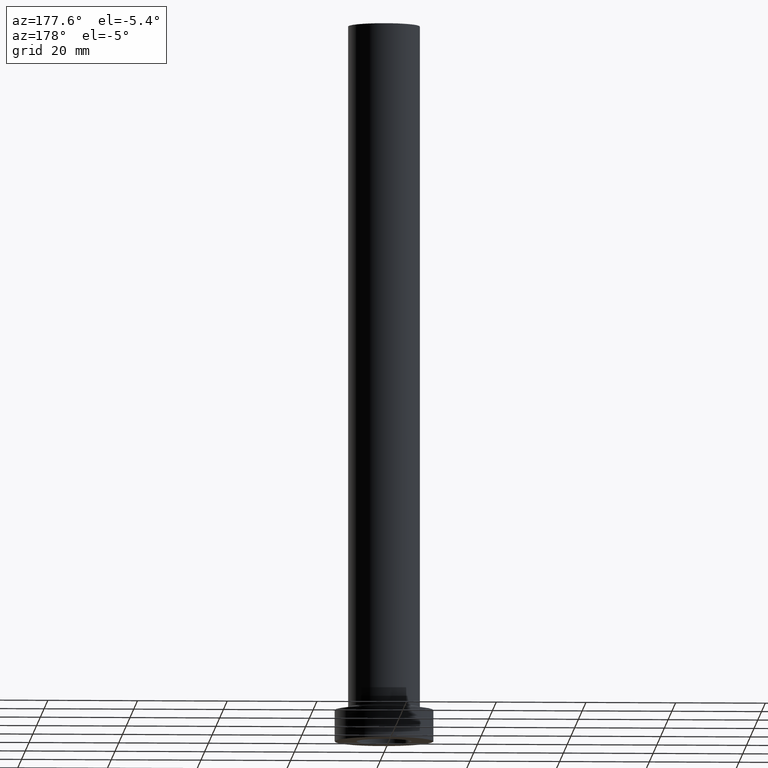
[diagram: clean part render]
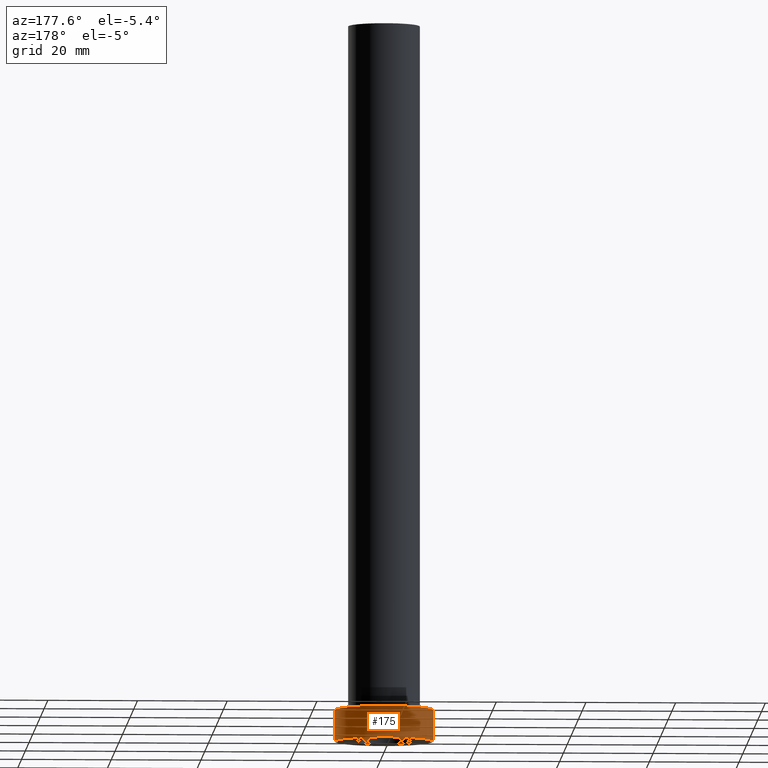
[diagram: same view with one face highlighted and labeled with its STEP entity id]
A machine part, auxiliary view. The second image highlights one B-rep face of the part: STEP entity #175.
In plain terms, the highlighted cylindrical surface (partial cylindrical patch) has radius 11 mm, axis along (-0, -0, -1).
Its self-contained STEP definition (entity closure, byte-faithful):
#13 = CARTESIAN_POINT ( 'NONE',  ( 11.00000000000000000, 1.347111479062088405E-15, 0.000000000000000000 ) ) ;
#14 = CIRCLE ( 'NONE', #71, 11.00000000000000000 ) ;
#29 = VERTEX_POINT ( 'NONE', #331 ) ;
#39 = VERTEX_POINT ( 'NONE', #222 ) ;
#52 = DIRECTION ( 'NONE',  ( 1.000000000000000000, 0.000000000000000000, 0.000000000000000000 ) ) ;
#71 = AXIS2_PLACEMENT_3D ( 'NONE', #417, #348, #52 ) ;
#78 = DIRECTION ( 'NONE',  ( 0.000000000000000000, 0.000000000000000000, 1.000000000000000000 ) ) ;
#88 = CYLINDRICAL_SURFACE ( 'NONE', #153, 11.00000000000000000 ) ;
#100 = CARTESIAN_POINT ( 'NONE',  ( 11.00000000000000000, 1.347111479062088405E-15, 7.000000000000000000 ) ) ;
#107 = EDGE_LOOP ( 'NONE', ( #253, #248, #321, #143 ) ) ;
#121 = CARTESIAN_POINT ( 'NONE',  ( -11.00000000000000000, 0.000000000000000000, 7.000000000000000000 ) ) ;
#139 = EDGE_CURVE ( 'NONE', #177, #39, #14, .T. ) ;
#141 = DIRECTION ( 'NONE',  ( -0.000000000000000000, -0.000000000000000000, -1.000000000000000000 ) ) ;
#143 = ORIENTED_EDGE ( 'NONE', *, *, #215, .F. ) ;
#153 = AXIS2_PLACEMENT_3D ( 'NONE', #408, #198, #376 ) ;
#175 = ADVANCED_FACE ( 'NONE', ( #233 ), #88, .T. ) ;
#177 = VERTEX_POINT ( 'NONE', #203 ) ;
#190 = AXIS2_PLACEMENT_3D ( 'NONE', #407, #78, #400 ) ;
#198 = DIRECTION ( 'NONE',  ( -0.000000000000000000, -0.000000000000000000, -1.000000000000000000 ) ) ;
#203 = CARTESIAN_POINT ( 'NONE',  ( 11.00000000000000000, 1.347111479062088405E-15, 7.000000000000000000 ) ) ;
#215 = EDGE_CURVE ( 'NONE', #39, #29, #341, .T. ) ;
#217 = VECTOR ( 'NONE', #378, 1000.000000000000000 ) ;
#222 = CARTESIAN_POINT ( 'NONE',  ( -11.00000000000000000, 0.000000000000000000, 7.000000000000000000 ) ) ;
#233 = FACE_OUTER_BOUND ( 'NONE', #107, .T. ) ;
#248 = ORIENTED_EDGE ( 'NONE', *, *, #277, .T. ) ;
#253 = ORIENTED_EDGE ( 'NONE', *, *, #139, .F. ) ;
#277 = EDGE_CURVE ( 'NONE', #177, #392, #359, .T. ) ;
#306 = VECTOR ( 'NONE', #141, 1000.000000000000000 ) ;
#321 = ORIENTED_EDGE ( 'NONE', *, *, #446, .T. ) ;
#331 = CARTESIAN_POINT ( 'NONE',  ( -11.00000000000000000, 0.000000000000000000, 0.000000000000000000 ) ) ;
#341 = LINE ( 'NONE', #121, #217 ) ;
#348 = DIRECTION ( 'NONE',  ( 0.000000000000000000, 0.000000000000000000, 1.000000000000000000 ) ) ;
#359 = LINE ( 'NONE', #100, #306 ) ;
#376 = DIRECTION ( 'NONE',  ( -1.000000000000000000, 0.000000000000000000, 0.000000000000000000 ) ) ;
#378 = DIRECTION ( 'NONE',  ( -0.000000000000000000, -0.000000000000000000, -1.000000000000000000 ) ) ;
#380 = CIRCLE ( 'NONE', #190, 11.00000000000000000 ) ;
#392 = VERTEX_POINT ( 'NONE', #13 ) ;
#400 = DIRECTION ( 'NONE',  ( 1.000000000000000000, 0.000000000000000000, 0.000000000000000000 ) ) ;
#407 = CARTESIAN_POINT ( 'NONE',  ( 0.000000000000000000, 0.000000000000000000, 0.000000000000000000 ) ) ;
#408 = CARTESIAN_POINT ( 'NONE',  ( 0.000000000000000000, 0.000000000000000000, 7.000000000000000000 ) ) ;
#417 = CARTESIAN_POINT ( 'NONE',  ( 0.000000000000000000, 0.000000000000000000, 7.000000000000000000 ) ) ;
#446 = EDGE_CURVE ( 'NONE', #392, #29, #380, .T. ) ;